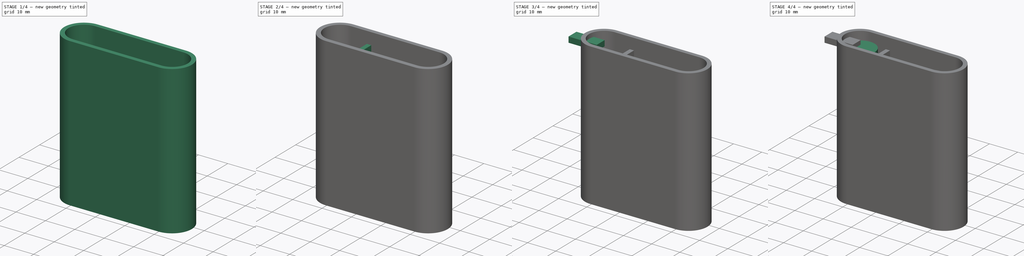
[diagram: build sequence overview — one tinted view per stage of 4, left to right]
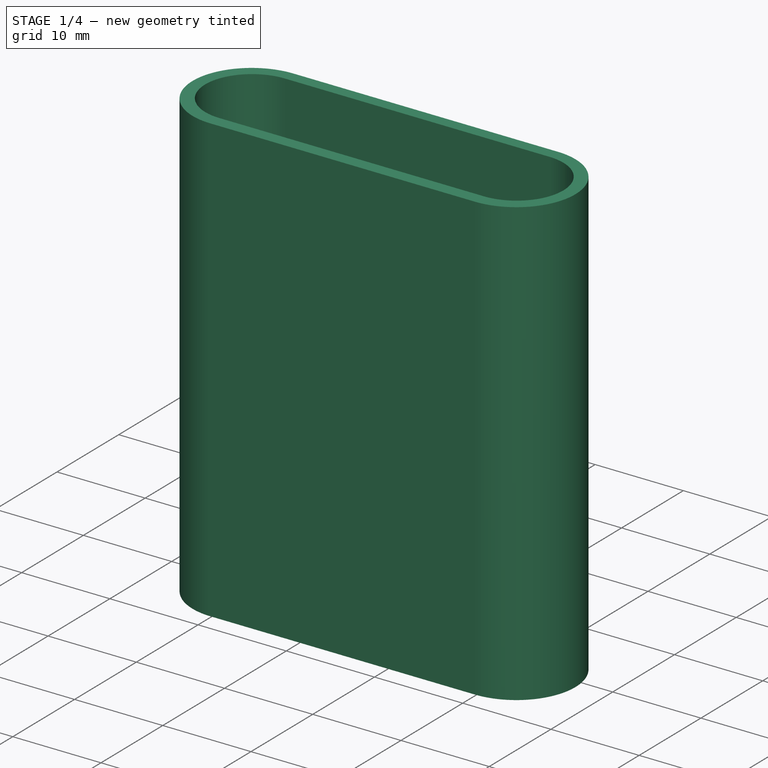
[diagram: stage 1 of 4 — iso view after this stage's code; geometry added in this stage tinted green]
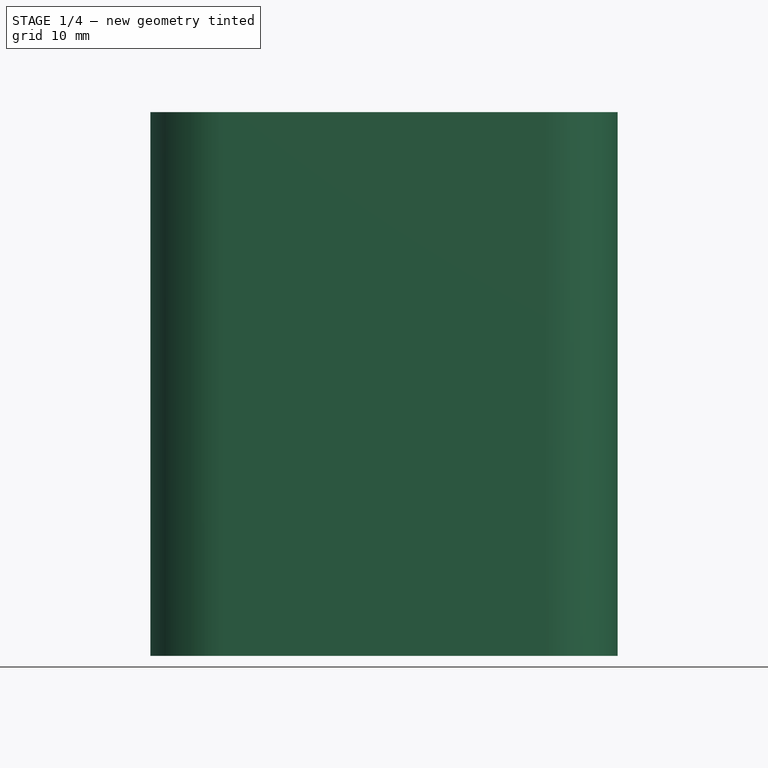
[diagram: stage 1 of 4 — front view after this stage's code; geometry added in this stage tinted green]
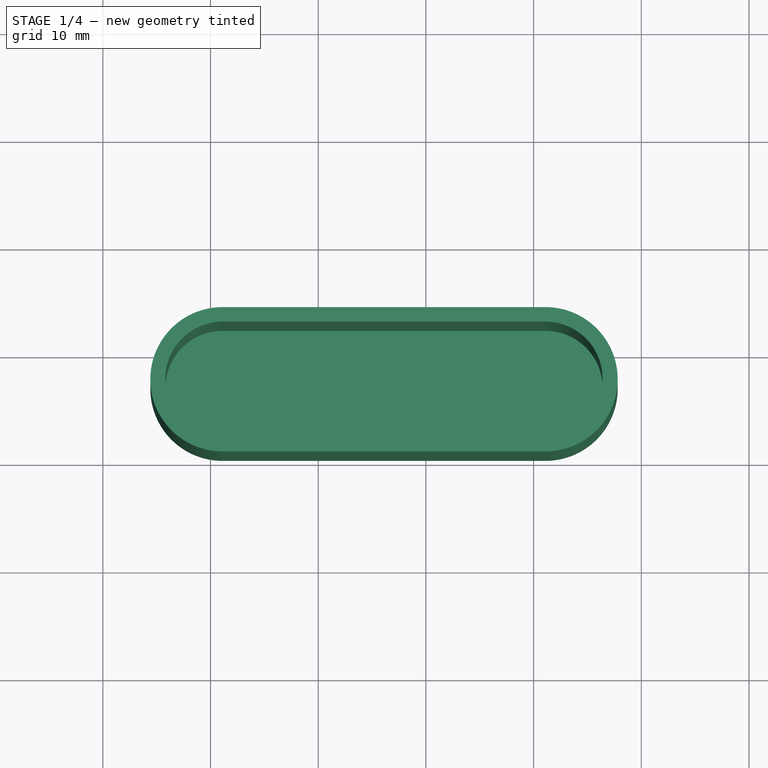
[diagram: stage 1 of 4 — top view after this stage's code; geometry added in this stage tinted green]
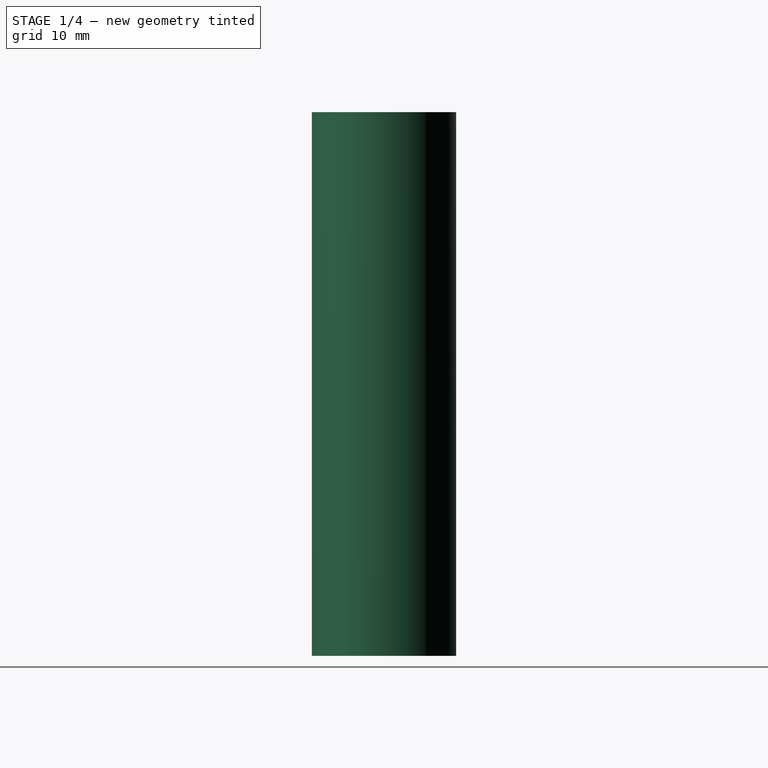
[diagram: stage 1 of 4 — right view after this stage's code; geometry added in this stage tinted green]
FCSTD DOCUMENT  (FreeCAD 0.15R4671 (Git))
Label: plastic
License: All rights reserved
LicenseURL: http://en.wikipedia.org/wiki/All_rights_reserved
objects: Sketcher::SketchObject×9, PartDesign::Pad×7, PartDesign::Pocket×2
note: 27 computed .brp shape members not serialized (recipe doc carries the construction recipe); baked Part::Feature solids carry a one-line shape summary decoded from their .brp

FEATURE [Sketcher::SketchObject] Sketch  label="Base"
  sketch-geometry (4):
    g0: ArcOfCircle CenterX=-28.892 CenterY=7.1 CenterZ=0 NormalX=0 NormalY=0 NormalZ=1 Radius=6.7 StartAngle=1.5708 EndAngle=4.71239
    g1: ArcOfCircle CenterX=1.10804 CenterY=7.1 CenterZ=0 NormalX=0 NormalY=0 NormalZ=1 Radius=6.7 StartAngle=4.71239 EndAngle=7.85398
    g2: LineSegment StartX=-28.892 StartY=0.4 StartZ=0 EndX=1.10804 EndY=0.4 EndZ=0
    g3: LineSegment StartX=-28.892 StartY=13.8 StartZ=0 EndX=1.10804 EndY=13.8 EndZ=0
  constraints (9):
    c: Tangent(g0,g3) = 1.5708
    c: Tangent(g0,g2) = -1.5708
    c: Tangent(g2,g1) = -1.5708
    c: Tangent(g3,g1) = 1.5708
    c: Horizontal(g2)
    c: Equal(g0,g1)
    c: DistanceY(g0,g0) = -13.4
    c: DistanceX(g0,g1) = 30
    c: DistanceY(g-1,g0) = 0.4
FEATURE [PartDesign::Pad] Pad
  Length = 50.5
  Length2 = 100
  Sketch = -> Sketch
  Type = 0
FEATURE [Sketcher::SketchObject] Sketch001  label="Hole"
  ExternalGeometry = -> [Pad]
  Placement = pos=(0,0,50.5) rot=(0,0,1;0rad)
  Support = -> Pad [Face6]
  sketch-geometry (4):
    g0: ArcOfCircle CenterX=-28.8918 CenterY=7.14689 CenterZ=0 NormalX=0 NormalY=0 NormalZ=1 Radius=5.3 StartAngle=1.5708 EndAngle=4.71239
    g1: ArcOfCircle CenterX=1.10817 CenterY=7.14689 CenterZ=0 NormalX=0 NormalY=0 NormalZ=1 Radius=5.3 StartAngle=4.71239 EndAngle=7.85398
    g2: LineSegment StartX=-28.8918 StartY=1.84689 StartZ=0 EndX=1.10817 EndY=1.84689 EndZ=0
    g3: LineSegment StartX=-28.8918 StartY=12.4469 StartZ=0 EndX=1.10817 EndY=12.4469 EndZ=0
  constraints (6):
    c: Tangent(g0,g3) = 1.5708
    c: Tangent(g0,g2) = -1.5708
    c: Tangent(g2,g1) = -1.5708
    c: Tangent(g3,g1) = 1.5708
    c: Horizontal(g2)
    c: Equal(g0,g1)
FEATURE [PartDesign::Pocket] Pocket
  Length = 49
  Sketch = -> Sketch001
  Type = 0
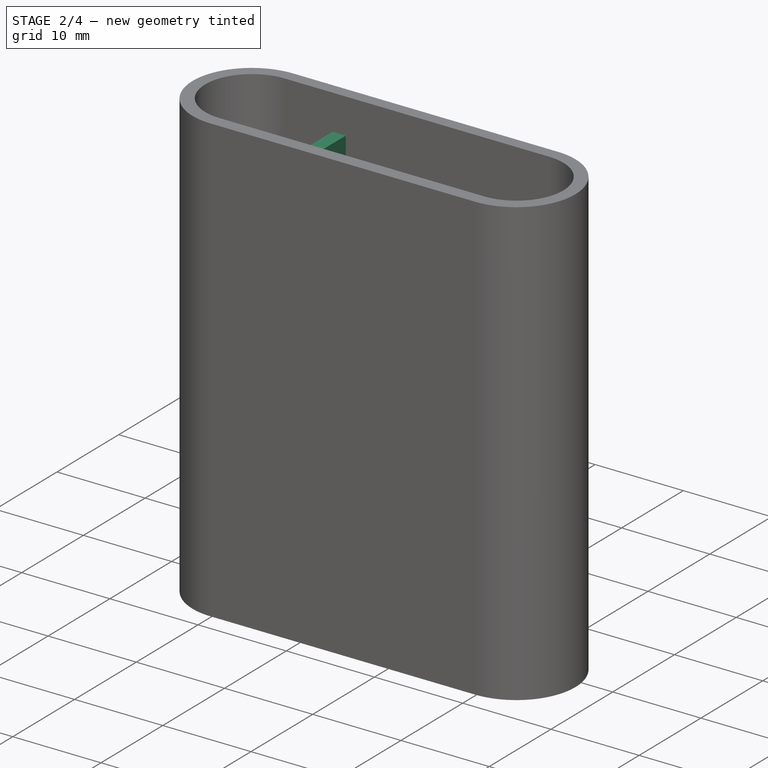
[diagram: stage 2 of 4 — iso view after this stage's code; geometry added in this stage tinted green]
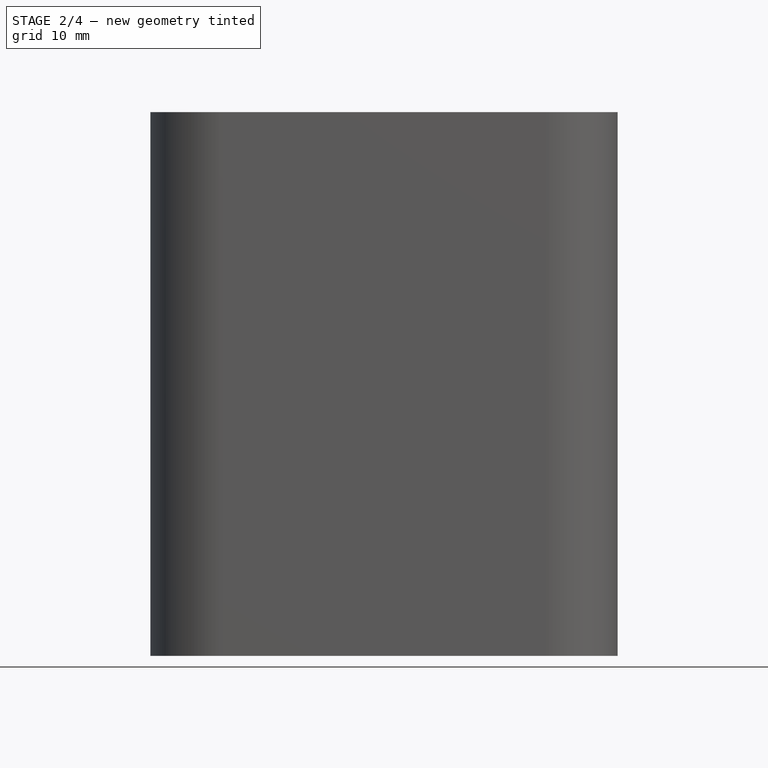
[diagram: stage 2 of 4 — front view after this stage's code; geometry added in this stage tinted green]
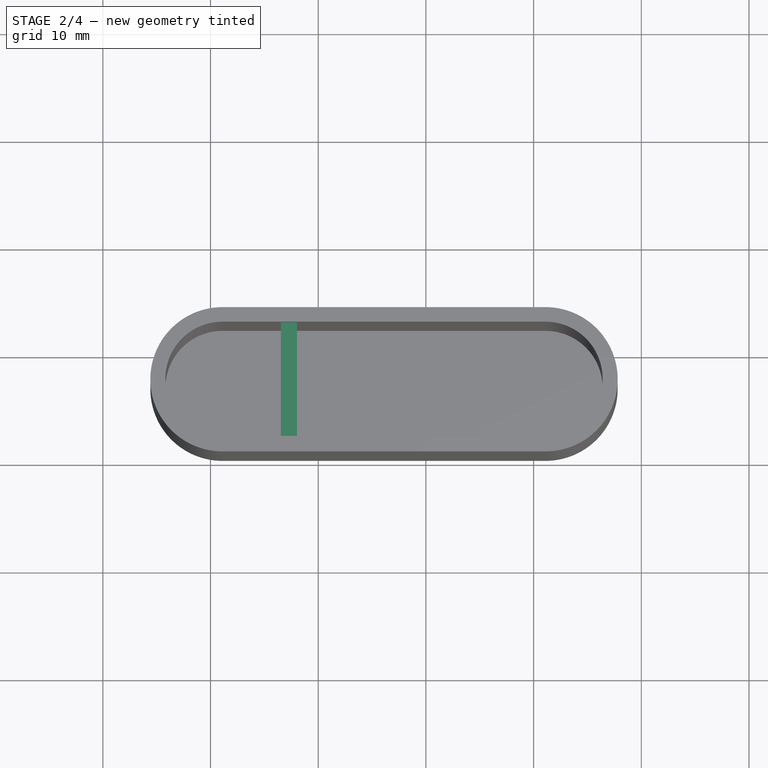
[diagram: stage 2 of 4 — top view after this stage's code; geometry added in this stage tinted green]
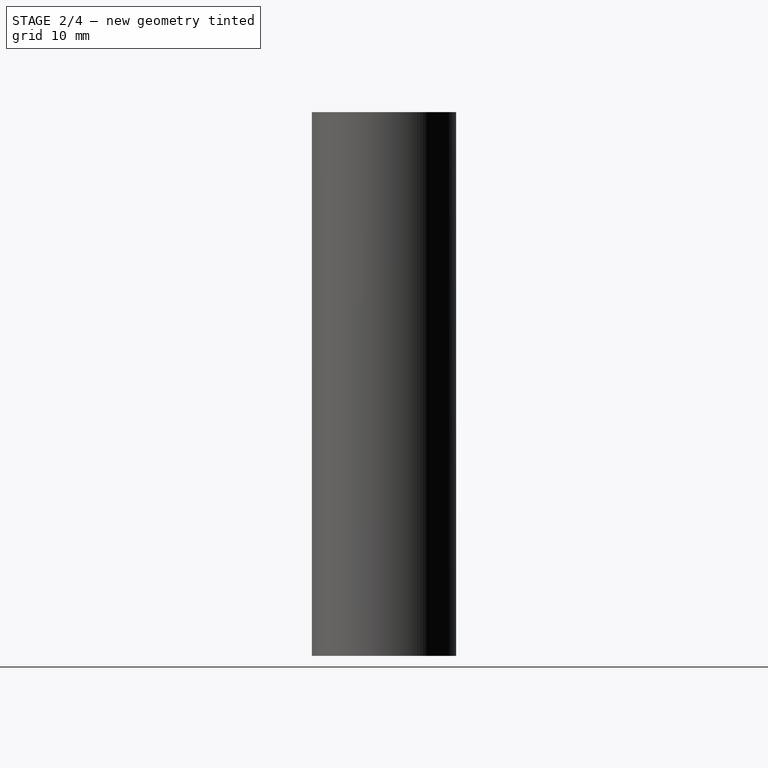
[diagram: stage 2 of 4 — right view after this stage's code; geometry added in this stage tinted green]
FEATURE [Sketcher::SketchObject] Sketch005
  ExternalGeometry = -> [Pocket]
  Placement = pos=(0,0,1.5) rot=(0,0,1;0rad)
  Support = -> Pocket [Face11]
  sketch-geometry (4):
    g0: LineSegment StartX=-23.4661 StartY=1.84689 StartZ=0 EndX=-21.9661 EndY=1.84689 EndZ=0
    g1: LineSegment StartX=-21.9661 StartY=1.84689 StartZ=0 EndX=-21.9661 EndY=12.4469 EndZ=0
    g2: LineSegment StartX=-21.9661 StartY=12.4469 StartZ=0 EndX=-23.4661 EndY=12.4469 EndZ=0
    g3: LineSegment StartX=-23.4661 StartY=12.4469 StartZ=0 EndX=-23.4661 EndY=1.84689 EndZ=0
  constraints (11):
    c: Coincident(g0,g1)
    c: Coincident(g1,g2)
    c: Coincident(g2,g3)
    c: Coincident(g3,g0)
    c: Horizontal(g0)
    c: Horizontal(g2)
    c: Vertical(g1)
    c: Vertical(g3)
    c: DistanceX(g0,g0) = 1.5
    c: DistanceY(g0,g-5) = 0
    c: DistanceY(g-4,g2) = 0
FEATURE [PartDesign::Pad] Pad004
  Length = 45
  Length2 = 100
  Sketch = -> Sketch005
  Type = 0
FEATURE [Sketcher::SketchObject] Sketch011  label="Logo"
  Placement = pos=(0,0.4,0) rot=(1,0,0;1.5708rad)
  Support = -> Pad004 [Face3]
  sketch-geometry (75):
    g0: LineSegment StartX=14.794 StartY=-20.7928 StartZ=0 EndX=13.411 EndY=-26.9355 EndZ=0
    g1: LineSegment StartX=13.411 StartY=-26.9355 StartZ=0 EndX=12.6219 EndY=-26.1717 EndZ=0
    g2: LineSegment StartX=12.6219 StartY=-26.1717 StartZ=0 EndX=11.943 EndY=-25.2075 EndZ=0
    g3: LineSegment StartX=11.943 StartY=-25.2075 StartZ=0 EndX=11.0854 EndY=-24.0972 EndZ=0
    g4: LineSegment StartX=11.0854 StartY=-24.0972 StartZ=0 EndX=8.45274 EndY=-23.9588 EndZ=0
    g5: LineSegment StartX=8.45274 StartY=-23.9588 StartZ=0 EndX=8.42247 EndY=-24.4905 EndZ=0
    g6: LineSegment StartX=8.42247 StartY=-24.4905 StartZ=0 EndX=8.83479 EndY=-24.9886 EndZ=0
    g7: LineSegment StartX=8.83479 StartY=-24.9886 StartZ=0 EndX=9.82596 EndY=-25.9243 EndZ=0
    g8: LineSegment StartX=9.82596 StartY=-25.9243 StartZ=0 EndX=13.2101 EndY=-28.958 EndZ=0
    g9: LineSegment StartX=13.2101 StartY=-28.958 StartZ=0 EndX=15.0302 EndY=-30.3158 EndZ=0
    g10: LineSegment StartX=15.0302 StartY=-30.3158 StartZ=0 EndX=16.9698 EndY=-31.4956 EndZ=0
    g11: LineSegment StartX=16.9698 StartY=-31.4956 StartZ=0 EndX=18.2359 EndY=-31.9877 EndZ=0
    g12: LineSegment StartX=18.2359 StartY=-31.9877 StartZ=0 EndX=18.8886 EndY=-32.003 EndZ=0
    g13: LineSegment StartX=18.8886 StartY=-32.003 StartZ=0 EndX=19.5237 EndY=-31.7319 EndZ=0
    g14: LineSegment StartX=19.5237 StartY=-31.7319 StartZ=0 EndX=21.5918 EndY=-30.6049 EndZ=0
    g15: LineSegment StartX=21.5918 StartY=-30.6049 StartZ=0 EndX=23.5056 EndY=-29.2417 EndZ=0
    g16: LineSegment StartX=23.5056 StartY=-29.2417 StartZ=0 EndX=26.9776 EndY=-26.0633 EndZ=0
    g17: LineSegment StartX=26.9776 StartY=-26.0633 StartZ=0 EndX=28.9618 EndY=-23.9409 EndZ=0
    g18: LineSegment StartX=28.9618 StartY=-23.9409 StartZ=0 EndX=29.8511 EndY=-22.7965 EndZ=0
    g19: LineSegment StartX=29.8511 StartY=-22.7965 StartZ=0 EndX=30.5896 EndY=-21.6457 EndZ=0
    g20: LineSegment StartX=30.5896 StartY=-21.6457 StartZ=0 EndX=28.1355 EndY=-22.5054 EndZ=0
    g21: LineSegment StartX=28.1355 StartY=-22.5054 StartZ=0 EndX=25.7466 EndY=-23.626 EndZ=0
    g22: LineSegment StartX=25.7466 StartY=-23.626 StartZ=0 EndX=23.5888 EndY=-23.8851 EndZ=0
    g23: LineSegment StartX=23.5888 StartY=-23.8851 StartZ=0 EndX=21.4069 EndY=-23.954 EndZ=0
    g24: LineSegment StartX=21.4069 StartY=-23.954 StartZ=0 EndX=20.8819 EndY=-23.9583 EndZ=0
    g25: LineSegment StartX=20.8819 StartY=-23.9583 StartZ=0 EndX=20.6469 EndY=-24 EndZ=0
    g26: LineSegment StartX=20.6469 StartY=-24 StartZ=0 EndX=18.5146 EndY=-28.9131 EndZ=0
    g27: LineSegment StartX=18.5146 StartY=-28.9131 StartZ=0 EndX=18.1329 EndY=-27.7615 EndZ=0
    g28: LineSegment StartX=18.1329 StartY=-27.7615 StartZ=0 EndX=17.9052 EndY=-26.443 EndZ=0
    g29: LineSegment StartX=17.9052 StartY=-26.443 StartZ=0 EndX=16.9873 EndY=-21.3731 EndZ=0
    g30: LineSegment StartX=16.9873 StartY=-21.3731 StartZ=0 EndX=16.5626 EndY=-18.736 EndZ=0
    g31: LineSegment StartX=16.5626 StartY=-18.736 StartZ=0 EndX=15.9181 EndY=-15.1918 EndZ=0
    g32: LineSegment StartX=15.9181 StartY=-15.1918 StartZ=0 EndX=14.794 EndY=-20.7928 EndZ=0
    g33: LineSegment StartX=24.8854 StartY=-9.04416 StartZ=0 EndX=23.2265 EndY=-9.23489 EndZ=0
    g34: LineSegment StartX=23.2265 StartY=-9.23489 StartZ=0 EndX=21.6397 EndY=-9.74272 EndZ=0
    g35: LineSegment StartX=21.6397 StartY=-9.74272 StartZ=0 EndX=20.1813 EndY=-10.5468 EndZ=0
    g36: LineSegment StartX=20.1813 StartY=-10.5468 StartZ=0 EndX=18.9072 EndY=-11.6262 EndZ=0
    g37: LineSegment StartX=18.9072 StartY=-11.6262 StartZ=0 EndX=18.4788 EndY=-11.9407 EndZ=0
    g38: LineSegment StartX=18.4788 StartY=-11.9407 StartZ=0 EndX=18.0698 EndY=-11.6055 EndZ=0
    g39: LineSegment StartX=18.0698 StartY=-11.6055 StartZ=0 EndX=16.4763 EndY=-10.2769 EndZ=0
    g40: LineSegment StartX=16.4763 StartY=-10.2769 StartZ=0 EndX=14.5853 EndY=-9.4345 EndZ=0
    g41: LineSegment StartX=14.5853 StartY=-9.4345 StartZ=0 EndX=12.5366 EndY=-9.07988 EndZ=0
    g42: LineSegment StartX=12.5366 StartY=-9.07988 StartZ=0 EndX=10.4698 EndY=-9.21459 EndZ=0
    g43: LineSegment StartX=10.4698 StartY=-9.21459 StartZ=0 EndX=8.86852 EndY=-9.95458 EndZ=0
    g44: LineSegment StartX=8.86852 StartY=-9.95458 StartZ=0 EndX=7.50617 EndY=-11.0556 EndZ=0
    g45: LineSegment StartX=7.50617 StartY=-11.0556 StartZ=0 EndX=6.39994 EndY=-12.4278 EndZ=0
    g46: LineSegment StartX=6.39994 StartY=-12.4278 StartZ=0 EndX=5.56702 EndY=-13.9814 EndZ=0
    g47: LineSegment StartX=5.56702 StartY=-13.9814 StartZ=0 EndX=5.18723 EndY=-14.9993 EndZ=0
    g48: LineSegment StartX=5.18723 StartY=-14.9993 StartZ=0 EndX=5.05842 EndY=-16.0747 EndZ=0
    g49: LineSegment StartX=5.05842 StartY=-16.0747 StartZ=0 EndX=5.18035 EndY=-18.2549 EndZ=0
    g50: LineSegment StartX=5.18035 StartY=-18.2549 StartZ=0 EndX=5.92411 EndY=-20.5285 EndZ=0
    g51: LineSegment StartX=5.92411 StartY=-20.5285 StartZ=0 EndX=7.10091 EndY=-22.6174 EndZ=0
    g52: LineSegment StartX=7.10091 StartY=-22.6174 StartZ=0 EndX=7.71831 EndY=-22.9521 EndZ=0
    g53: LineSegment StartX=7.71831 StartY=-22.9521 StartZ=0 EndX=8.41632 EndY=-23.0621 EndZ=0
    g54: LineSegment StartX=8.41632 StartY=-23.0621 StartZ=0 EndX=9.85462 EndY=-23.1072 EndZ=0
    g55: LineSegment StartX=9.85462 StartY=-23.1072 StartZ=0 EndX=11.6857 EndY=-23.1796 EndZ=0
    g56: LineSegment StartX=11.6857 StartY=-23.1796 StartZ=0 EndX=12.903 EndY=-25.0987 EndZ=0
    g57: LineSegment StartX=12.903 StartY=-25.0987 StartZ=0 EndX=15.7405 EndY=-11.887 EndZ=0
    g58: LineSegment StartX=15.7405 StartY=-11.887 StartZ=0 EndX=16.1937 EndY=-13.2999 EndZ=0
    g59: LineSegment StartX=16.1937 StartY=-13.2999 StartZ=0 EndX=16.4907 EndY=-14.8779 EndZ=0
    g60: LineSegment StartX=16.4907 StartY=-14.8779 StartZ=0 EndX=18.7667 EndY=-26.8317 EndZ=0
    g61: LineSegment StartX=18.7667 StartY=-26.8317 StartZ=0 EndX=19.457 EndY=-25.0233 EndZ=0
    g62: LineSegment StartX=19.457 StartY=-25.0233 StartZ=0 EndX=20.0585 EndY=-23.1796 EndZ=0
    g63: LineSegment StartX=20.0585 StartY=-23.1796 StartZ=0 EndX=25.3687 EndY=-22.9654 EndZ=0
    g64: LineSegment StartX=25.3687 StartY=-22.9654 StartZ=0 EndX=28.213 EndY=-21.5971 EndZ=0
    g65: LineSegment StartX=28.213 StartY=-21.5971 StartZ=0 EndX=31.1584 EndY=-20.479 EndZ=0
    g66: LineSegment StartX=31.1584 StartY=-20.479 StartZ=0 EndX=31.7682 EndY=-18.4252 EndZ=0
    g67: LineSegment StartX=31.7682 StartY=-18.4252 StartZ=0 EndX=31.9394 EndY=-16.2951 EndZ=0
    g68: LineSegment StartX=31.9394 StartY=-16.2951 StartZ=0 EndX=31.8813 EndY=-15.1061 EndZ=0
    g69: LineSegment StartX=31.8813 StartY=-15.1061 StartZ=0 EndX=31.5325 EndY=-13.979 EndZ=0
    g70: LineSegment StartX=31.5325 StartY=-13.979 StartZ=0 EndX=30.3498 EndY=-11.9129 EndZ=0
    g71: LineSegment StartX=30.3498 StartY=-11.9129 StartZ=0 EndX=29.2769 EndY=-10.7188 EndZ=0
    g72: LineSegment StartX=29.2769 StartY=-10.7188 StartZ=0 EndX=27.9671 EndY=-9.80201 EndZ=0
    g73: LineSegment StartX=27.9671 StartY=-9.80201 StartZ=0 EndX=26.4826 EndY=-9.22347 EndZ=0
    g74: LineSegment StartX=26.4826 StartY=-9.22347 StartZ=0 EndX=24.8854 EndY=-9.04416 EndZ=0
FEATURE [PartDesign::Pocket] Pocket001
  Length = 0.1
  Sketch = -> Sketch011
  Type = 0
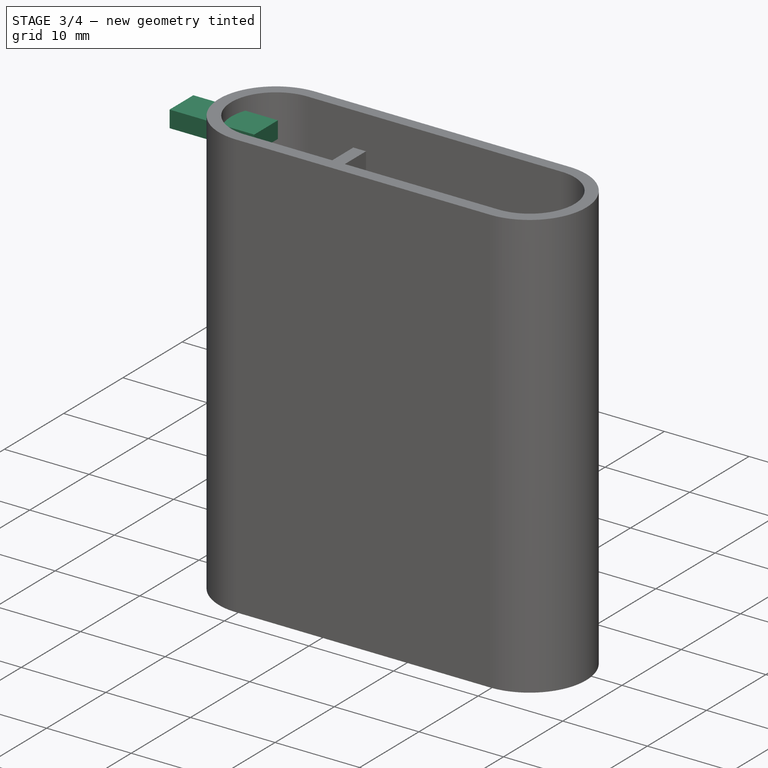
[diagram: stage 3 of 4 — iso view after this stage's code; geometry added in this stage tinted green]
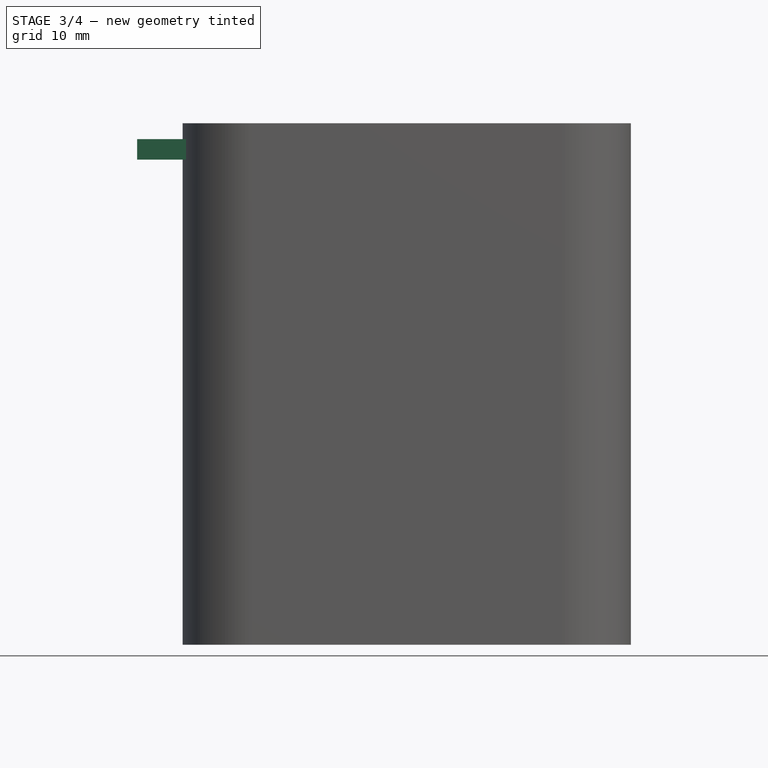
[diagram: stage 3 of 4 — front view after this stage's code; geometry added in this stage tinted green]
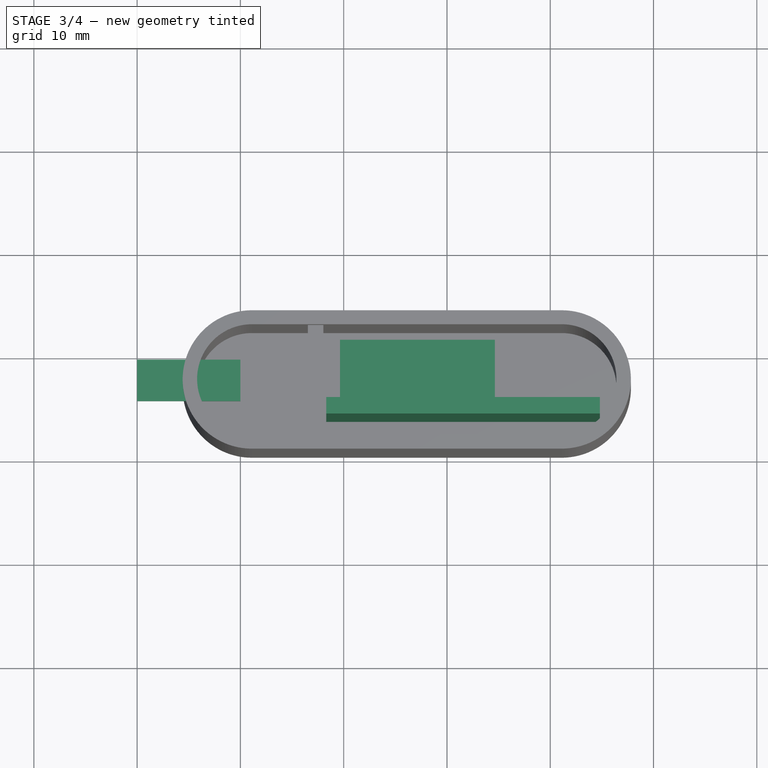
[diagram: stage 3 of 4 — top view after this stage's code; geometry added in this stage tinted green]
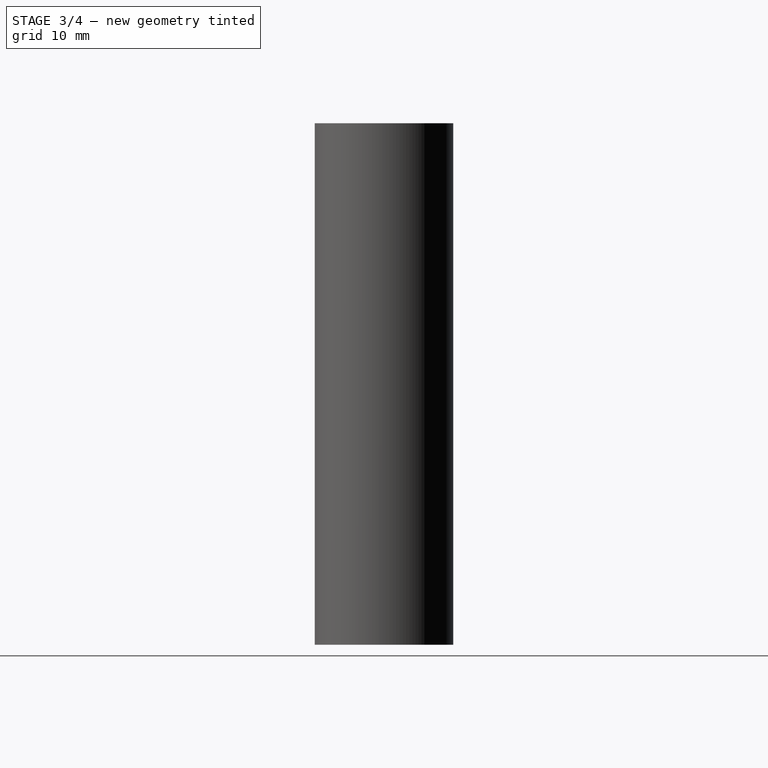
[diagram: stage 3 of 4 — right view after this stage's code; geometry added in this stage tinted green]
FEATURE [Sketcher::SketchObject] Sketch002
  Placement = pos=(0,0,1.5) rot=(0,0,1;0rad)
  sketch-geometry (4):
    g0: LineSegment StartX=-21.6942 StartY=5.4528 StartZ=0 EndX=4.80583 EndY=5.4528 EndZ=0
    g1: LineSegment StartX=4.80583 StartY=5.4528 StartZ=0 EndX=4.80583 EndY=3.8528 EndZ=0
    g2: LineSegment StartX=4.80583 StartY=3.8528 StartZ=0 EndX=-21.6942 EndY=3.8528 EndZ=0
    g3: LineSegment StartX=-21.6942 StartY=3.8528 StartZ=0 EndX=-21.6942 EndY=5.4528 EndZ=0
  constraints (10):
    c: Coincident(g0,g1)
    c: Coincident(g1,g2)
    c: Coincident(g2,g3)
    c: Coincident(g3,g0)
    c: Horizontal(g0)
    c: Horizontal(g2)
    c: Vertical(g1)
    c: Vertical(g3)
    c: DistanceX(g0,g0) = 26.5
    c: DistanceY(g0,g1) = -1.6
FEATURE [PartDesign::Pad] Pad001  label="PCB"
  Length = 46
  Length2 = 100
  Placement = pos=(0,0,1.5) rot=(0,0,1;0rad)
  Sketch = -> Sketch002
  Type = 0
FEATURE [Sketcher::SketchObject] Sketch006
  Placement = pos=(0,5.4528,1.5) rot=(0,0.707107,0.707107;3.14159rad)
  Support = -> Pad001 [Face1]
  sketch-geometry (4):
    g0: LineSegment StartX=5.36009 StartY=8.08611 StartZ=0 EndX=20.3601 EndY=8.08611 EndZ=0
    g1: LineSegment StartX=20.3601 StartY=8.08611 StartZ=0 EndX=20.3601 EndY=-0.913887 EndZ=0
    g2: LineSegment StartX=20.3601 StartY=-0.913887 StartZ=0 EndX=5.36009 EndY=-0.913887 EndZ=0
    g3: LineSegment StartX=5.36009 StartY=-0.913887 StartZ=0 EndX=5.36009 EndY=8.08611 EndZ=0
  constraints (10):
    c: Coincident(g0,g1)
    c: Coincident(g1,g2)
    c: Coincident(g2,g3)
    c: Coincident(g3,g0)
    c: Horizontal(g0)
    c: Horizontal(g2)
    c: Vertical(g1)
    c: Vertical(g3)
    c: DistanceX(g0,g0) = 15
    c: DistanceY(g0,g1) = -9
FEATURE [PartDesign::Pad] Pad005
  Length = 6.2
  Length2 = 100
  Placement = pos=(0,0,1.5) rot=(0,0,1;0rad)
  Sketch = -> Sketch006
  Type = 0
FEATURE [Sketcher::SketchObject] Sketch008
  Placement = pos=(-40,0,0) rot=(0.57735,0.57735,0.57735;2.0944rad)
  sketch-geometry (4):
    g0: LineSegment StartX=5.04453 StartY=48.9608 StartZ=0 EndX=9.05133 EndY=48.9608 EndZ=0
    g1: LineSegment StartX=9.05133 StartY=48.9608 StartZ=0 EndX=9.05133 EndY=46.9718 EndZ=0
    g2: LineSegment StartX=9.05133 StartY=46.9718 StartZ=0 EndX=5.04453 EndY=46.9718 EndZ=0
    g3: LineSegment StartX=5.04453 StartY=46.9718 StartZ=0 EndX=5.04453 EndY=48.9608 EndZ=0
  constraints (8):
    c: Coincident(g0,g1)
    c: Coincident(g1,g2)
    c: Coincident(g2,g3)
    c: Coincident(g3,g0)
    c: Horizontal(g0)
    c: Horizontal(g2)
    c: Vertical(g1)
    c: Vertical(g3)
FEATURE [PartDesign::Pad] Pad006
  Length = 10
  Length2 = 100
  Placement = pos=(-40,0,0) rot=(0.57735,0.57735,0.57735;2.0944rad)
  Sketch = -> Sketch008
  Type = 0
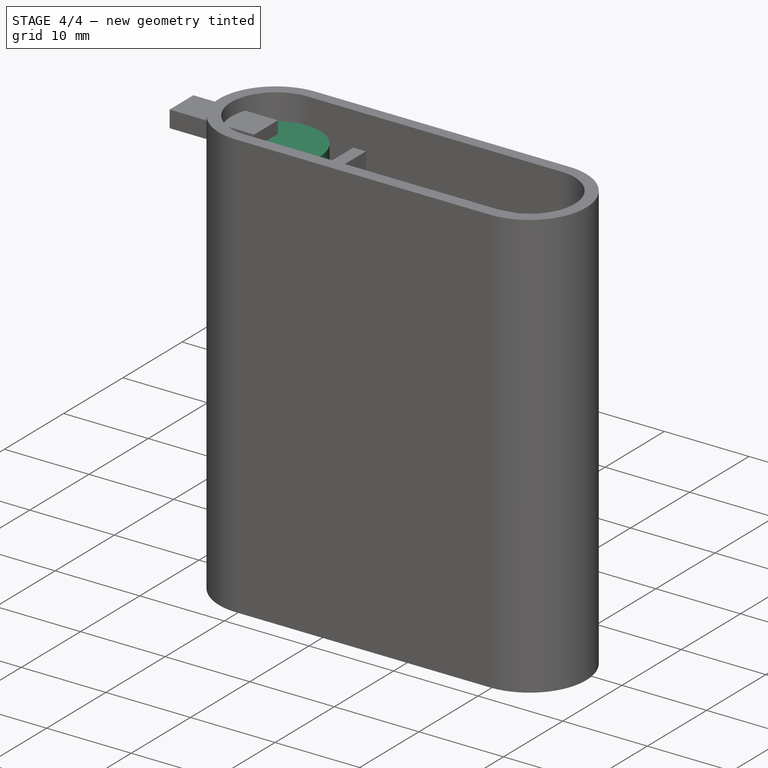
[diagram: stage 4 of 4 — iso view after this stage's code; geometry added in this stage tinted green]
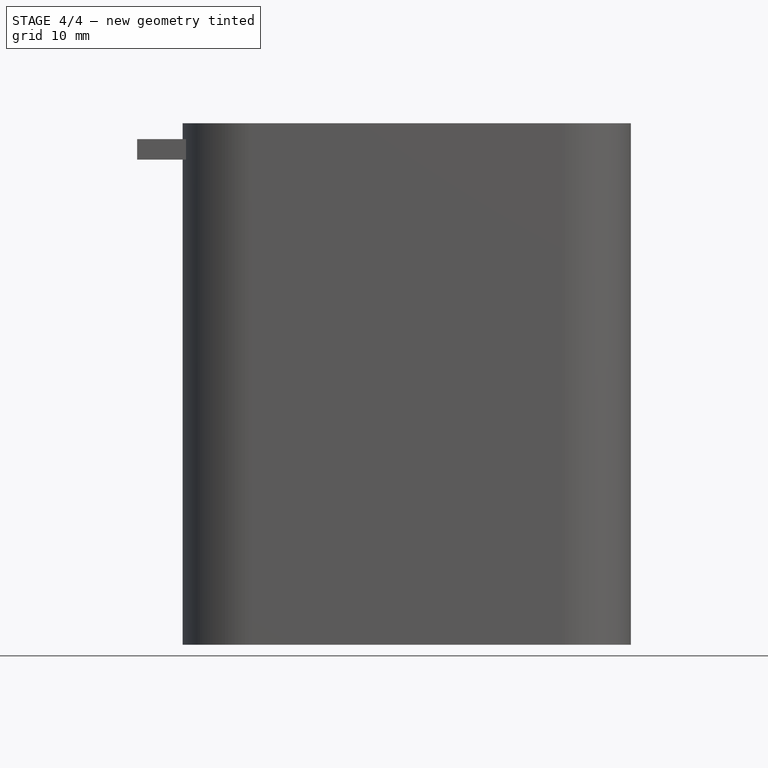
[diagram: stage 4 of 4 — front view after this stage's code; geometry added in this stage tinted green]
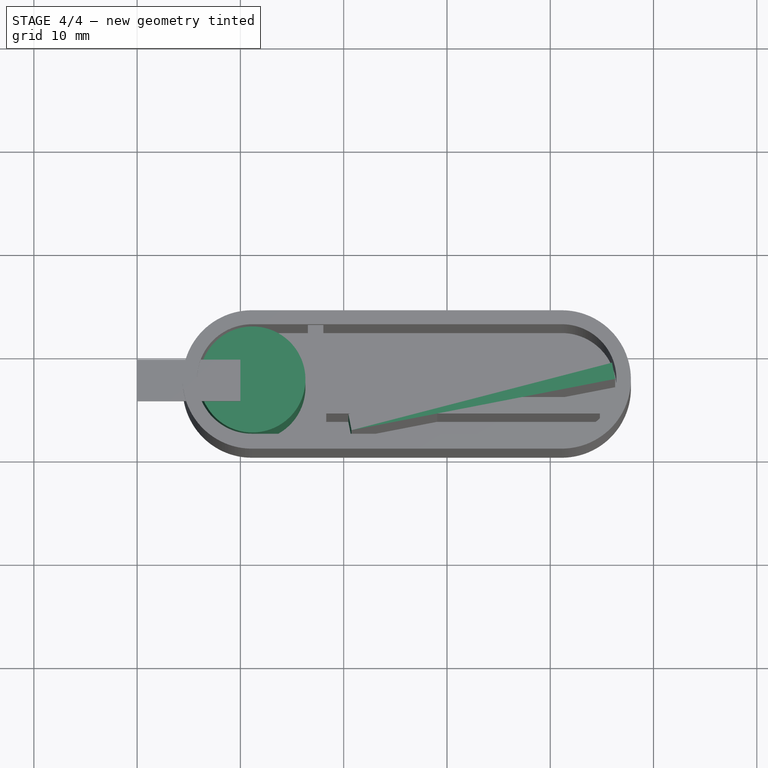
[diagram: stage 4 of 4 — top view after this stage's code; geometry added in this stage tinted green]
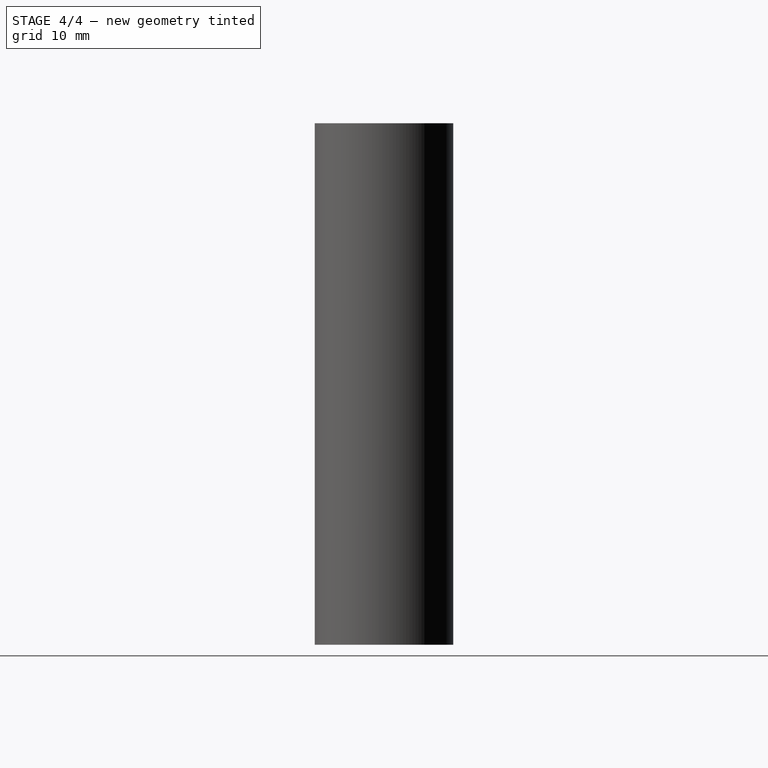
[diagram: stage 4 of 4 — right view after this stage's code; geometry added in this stage tinted green]
FEATURE [Sketcher::SketchObject] Sketch003
  Placement = pos=(0,0,3) rot=(0,0,1;0rad)
  sketch-geometry (1):
    g0: Circle CenterX=-28.8369 CenterY=7.15308 CenterZ=0 NormalX=0 NormalY=0 NormalZ=1 Radius=5.13266
FEATURE [PartDesign::Pad] Pad002
  Length = 44.5
  Length2 = 100
  Placement = pos=(0,0,3) rot=(0,0,1;0rad)
  Sketch = -> Sketch003
  Type = 0
FEATURE [Sketcher::SketchObject] Sketch004
  Placement = pos=(2.5,2.5,1.5) rot=(0,0,1;0.191986rad)
  sketch-geometry (4):
    g0: LineSegment StartX=-21.3877 StartY=5.49581 StartZ=0 EndX=4.61232 EndY=5.49581 EndZ=0
    g1: LineSegment StartX=4.61232 StartY=5.49581 StartZ=0 EndX=4.61232 EndY=3.89581 EndZ=0
    g2: LineSegment StartX=4.61232 StartY=3.89581 StartZ=0 EndX=-21.3877 EndY=3.89581 EndZ=0
    g3: LineSegment StartX=-21.3877 StartY=3.89581 StartZ=0 EndX=-21.3877 EndY=5.49581 EndZ=0
  constraints (10):
    c: Coincident(g0,g1)
    c: Coincident(g1,g2)
    c: Coincident(g2,g3)
    c: Coincident(g3,g0)
    c: Horizontal(g0)
    c: Horizontal(g2)
    c: Vertical(g1)
    c: Vertical(g3)
    c: DistanceX(g0,g0) = 26
    c: DistanceY(g0,g1) = -1.6
FEATURE [PartDesign::Pad] Pad003  label="PCB001"
  Length = 46
  Length2 = 100
  Placement = pos=(2.5,2.5,1.5) rot=(0,0,1;0.191986rad)
  Sketch = -> Sketch004
  Type = 0
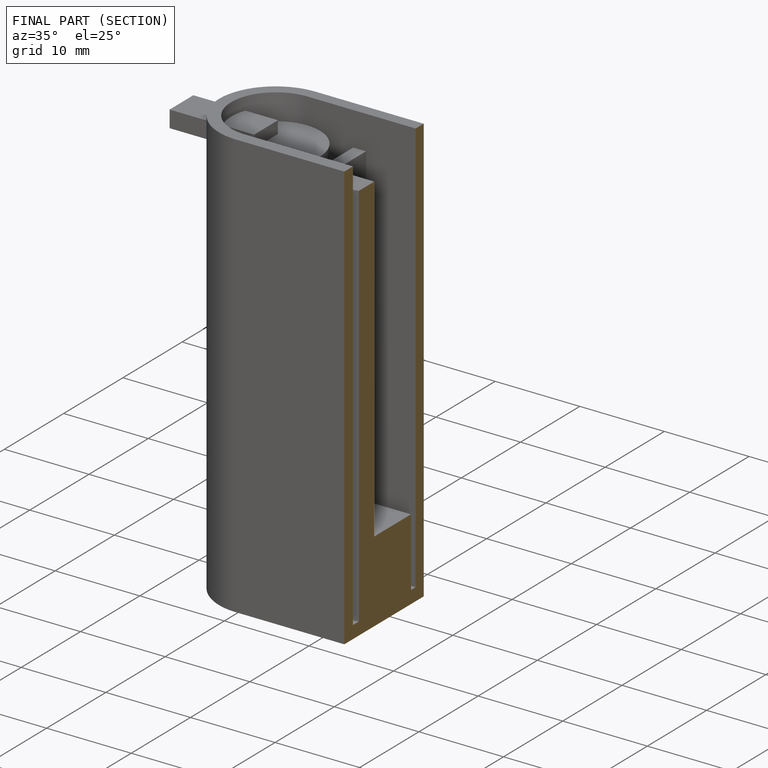
[diagram: finished part — half-section view (interior)]
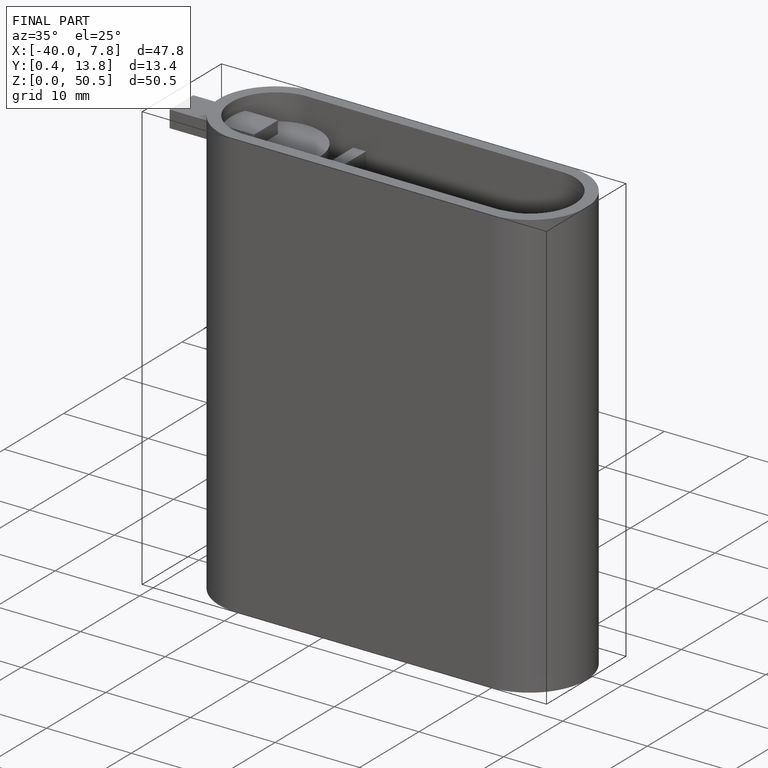
[diagram: finished part — iso view with bounding-box wireframe]
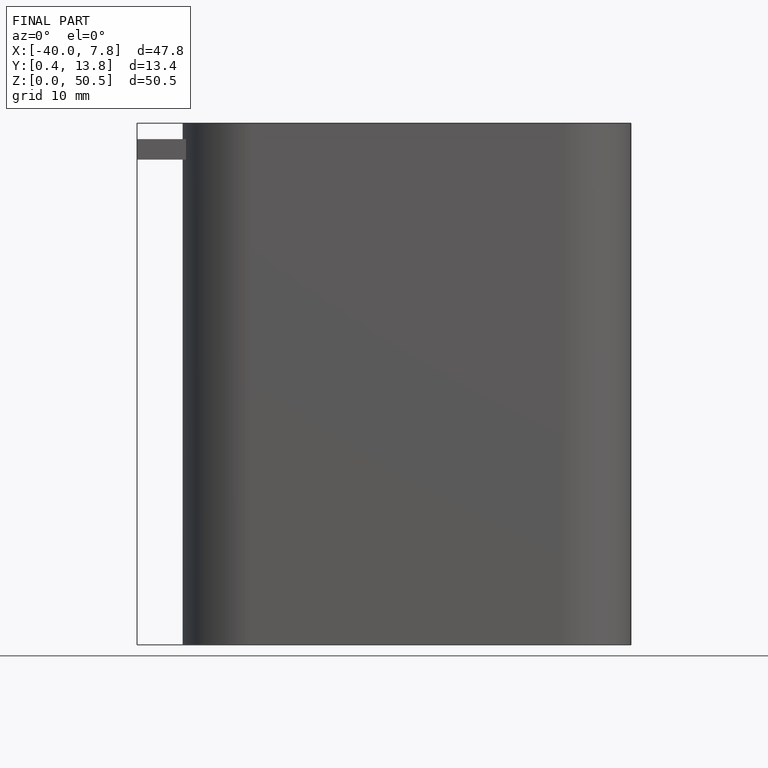
[diagram: finished part — front view with bounding-box wireframe]
